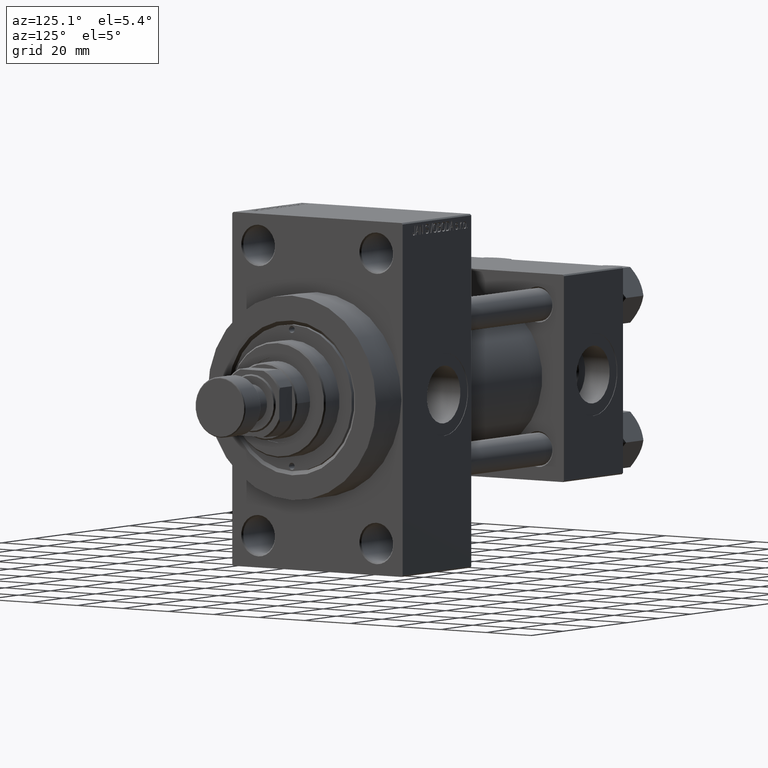
[diagram: clean part render]
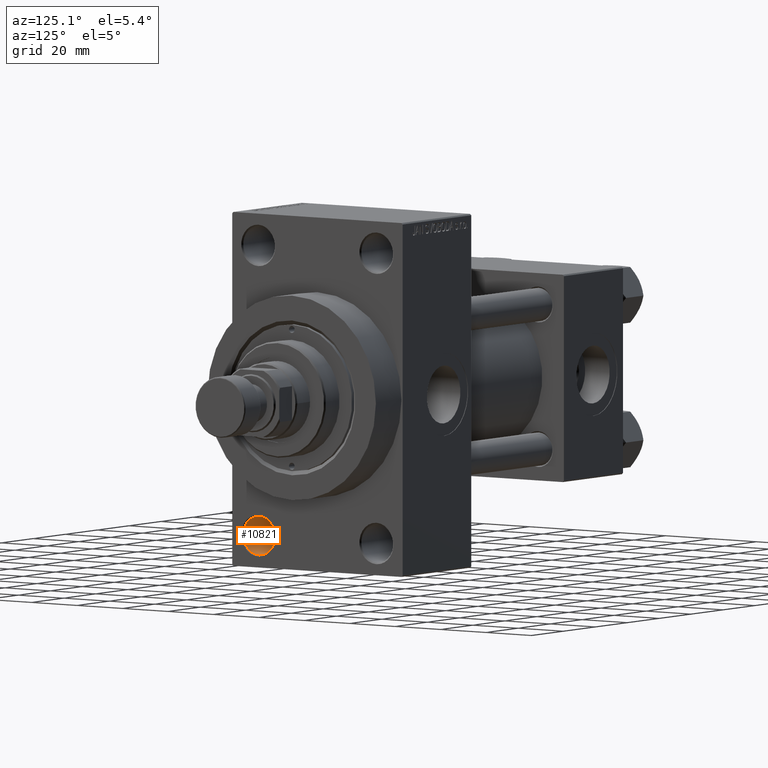
[diagram: same view with one face highlighted and labeled with its STEP entity id]
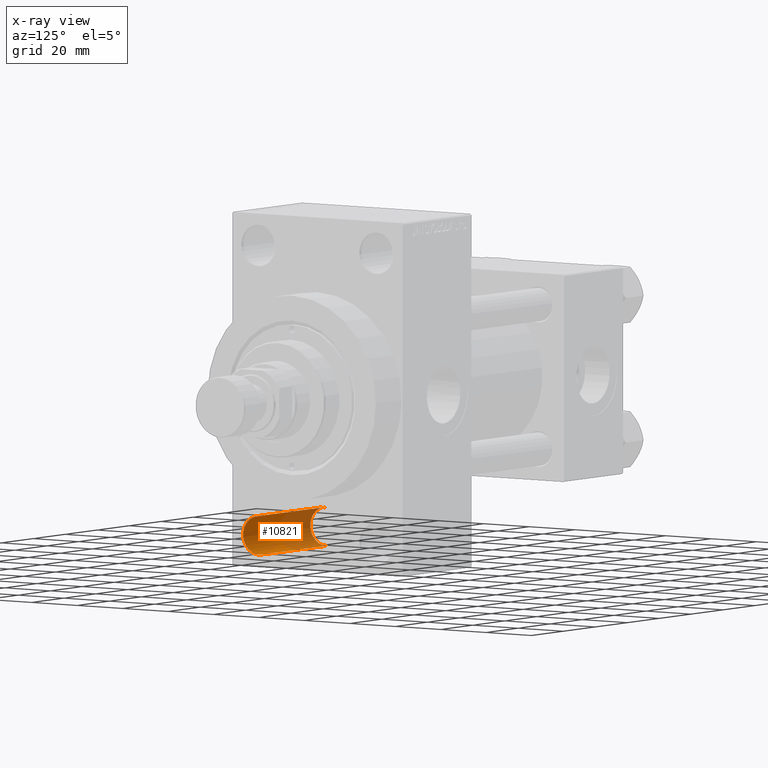
[diagram: x-ray of the same camera — body ghosted, the highlighted face saturated]
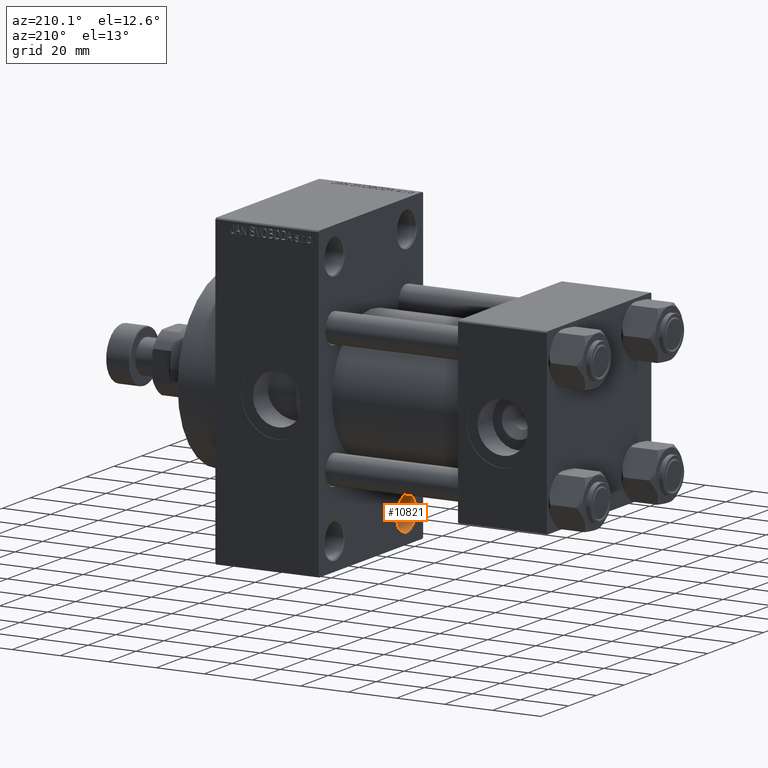
[diagram: same view with one face highlighted and labeled with its STEP entity id]
A machine part, auxiliary view. The second image highlights one B-rep face of the part: STEP entity #10821.
The next image is the same camera in x-ray: the body ghosted, the highlighted face saturated — about 46% of this face is hidden behind the body in this view.
A second angle (auxiliary view) of the same face is appended — the face is thin or edge-on in the first view.
In plain terms, the highlighted cylindrical surface (edge-blend (fillet) strip) has radius 7 mm, axis along (1, 0, 0).
Its self-contained STEP definition (entity closure, byte-faithful):
#1124 = CYLINDRICAL_SURFACE ( 'NONE', #21988, 6.999999999999999112 ) ;
#1826 = CIRCLE ( 'NONE', #30051, 6.999999999999999112 ) ;
#2571 = DIRECTION ( 'NONE',  ( 1.000000000000000000, -0.000000000000000000, -0.000000000000000000 ) ) ;
#3535 = VERTEX_POINT ( 'NONE', #8083 ) ;
#4180 = EDGE_CURVE ( 'NONE', #29802, #23401, #6351, .T. ) ;
#4651 = FACE_OUTER_BOUND ( 'NONE', #26244, .T. ) ;
#5122 = DIRECTION ( 'NONE',  ( 1.000000000000000000, -0.000000000000000000, -0.000000000000000000 ) ) ;
#5849 = AXIS2_PLACEMENT_3D ( 'NONE', #28640, #32687, #44056 ) ;
#6351 = LINE ( 'NONE', #21258, #38701 ) ;
#8083 = CARTESIAN_POINT ( 'NONE',  ( 137.5000000000000000, -25.99999999999999645, -45.49999999999999289 ) ) ;
#9455 = DIRECTION ( 'NONE',  ( 1.000000000000000000, 0.000000000000000000, 0.000000000000000000 ) ) ;
#10364 = CARTESIAN_POINT ( 'NONE',  ( 95.49999999999997158, -25.99999999999999645, -45.49999999999999289 ) ) ;
#10821 = ADVANCED_FACE ( 'NONE', ( #4651 ), #1124, .F. ) ;
#11499 = CIRCLE ( 'NONE', #5849, 6.999999999999999112 ) ;
#13216 = DIRECTION ( 'NONE',  ( 0.000000000000000000, 0.000000000000000000, 1.000000000000000000 ) ) ;
#21258 = CARTESIAN_POINT ( 'NONE',  ( 75.20101012677666574, -25.99999999999999645, -59.49999999999999289 ) ) ;
#21952 = VERTEX_POINT ( 'NONE', #10364 ) ;
#21988 = AXIS2_PLACEMENT_3D ( 'NONE', #42781, #31660, #24088 ) ;
#23401 = VERTEX_POINT ( 'NONE', #43378 ) ;
#23622 = CARTESIAN_POINT ( 'NONE',  ( 137.5000000000000000, -25.99999999999999645, -52.49999999999999289 ) ) ;
#24088 = DIRECTION ( 'NONE',  ( 0.000000000000000000, 0.000000000000000000, -1.000000000000000000 ) ) ;
#26244 = EDGE_LOOP ( 'NONE', ( #35696, #27231, #27629, #28651 ) ) ;
#27231 = ORIENTED_EDGE ( 'NONE', *, *, #38222, .T. ) ;
#27629 = ORIENTED_EDGE ( 'NONE', *, *, #37086, .T. ) ;
#27846 = CARTESIAN_POINT ( 'NONE',  ( 75.20101012677666574, -25.99999999999999645, -45.49999999999999289 ) ) ;
#28333 = LINE ( 'NONE', #27846, #40571 ) ;
#28640 = CARTESIAN_POINT ( 'NONE',  ( 95.49999999999997158, -25.99999999999999645, -52.49999999999999289 ) ) ;
#28651 = ORIENTED_EDGE ( 'NONE', *, *, #4180, .F. ) ;
#29802 = VERTEX_POINT ( 'NONE', #40064 ) ;
#30051 = AXIS2_PLACEMENT_3D ( 'NONE', #23622, #9455, #13216 ) ;
#31660 = DIRECTION ( 'NONE',  ( 1.000000000000000000, -0.000000000000000000, -0.000000000000000000 ) ) ;
#32687 = DIRECTION ( 'NONE',  ( -1.000000000000000000, -0.000000000000000000, -0.000000000000000000 ) ) ;
#35696 = ORIENTED_EDGE ( 'NONE', *, *, #37122, .T. ) ;
#37086 = EDGE_CURVE ( 'NONE', #3535, #23401, #1826, .T. ) ;
#37122 = EDGE_CURVE ( 'NONE', #29802, #21952, #11499, .T. ) ;
#38222 = EDGE_CURVE ( 'NONE', #21952, #3535, #28333, .T. ) ;
#38701 = VECTOR ( 'NONE', #2571, 1000.000000000000000 ) ;
#40064 = CARTESIAN_POINT ( 'NONE',  ( 95.49999999999997158, -25.99999999999999645, -59.49999999999999289 ) ) ;
#40571 = VECTOR ( 'NONE', #5122, 1000.000000000000000 ) ;
#42781 = CARTESIAN_POINT ( 'NONE',  ( 75.20101012677666574, -25.99999999999999645, -52.49999999999999289 ) ) ;
#43378 = CARTESIAN_POINT ( 'NONE',  ( 137.5000000000000000, -25.99999999999999645, -59.49999999999999289 ) ) ;
#44056 = DIRECTION ( 'NONE',  ( 0.000000000000000000, 0.000000000000000000, 1.000000000000000000 ) ) ;